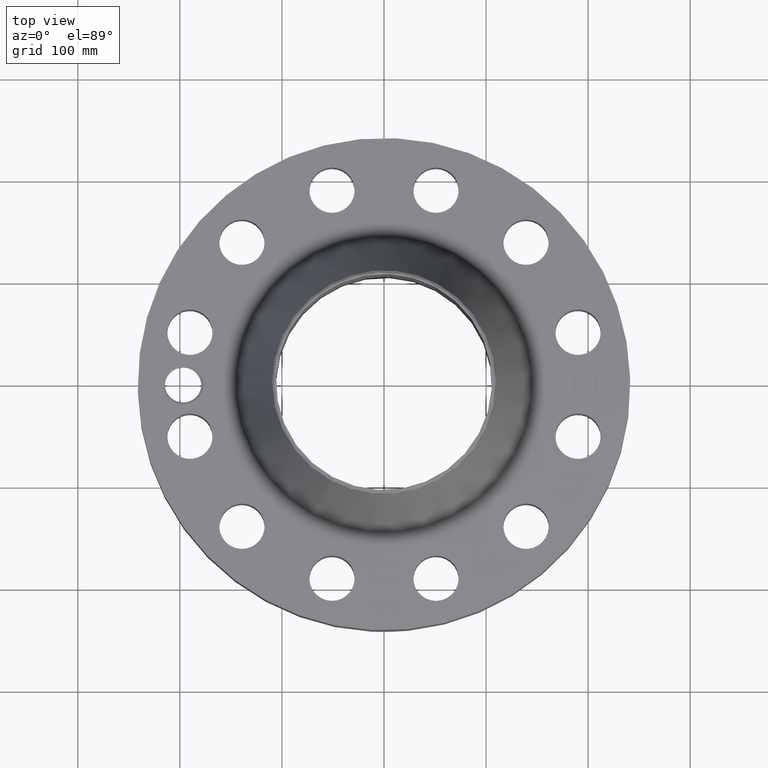
[diagram: clean part render]
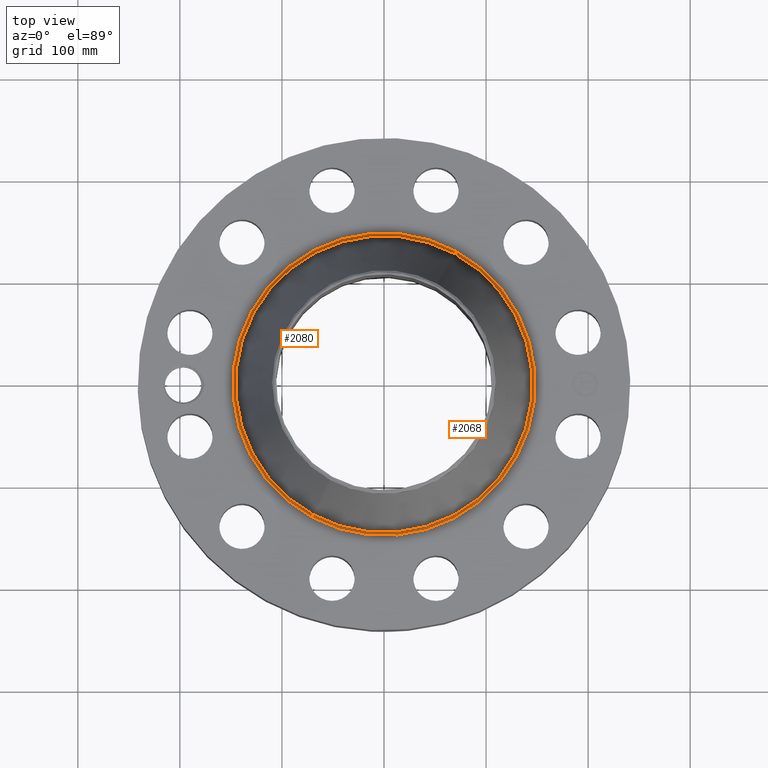
[diagram: same view with one multi-face feature highlighted, each face labeled with its STEP entity id]
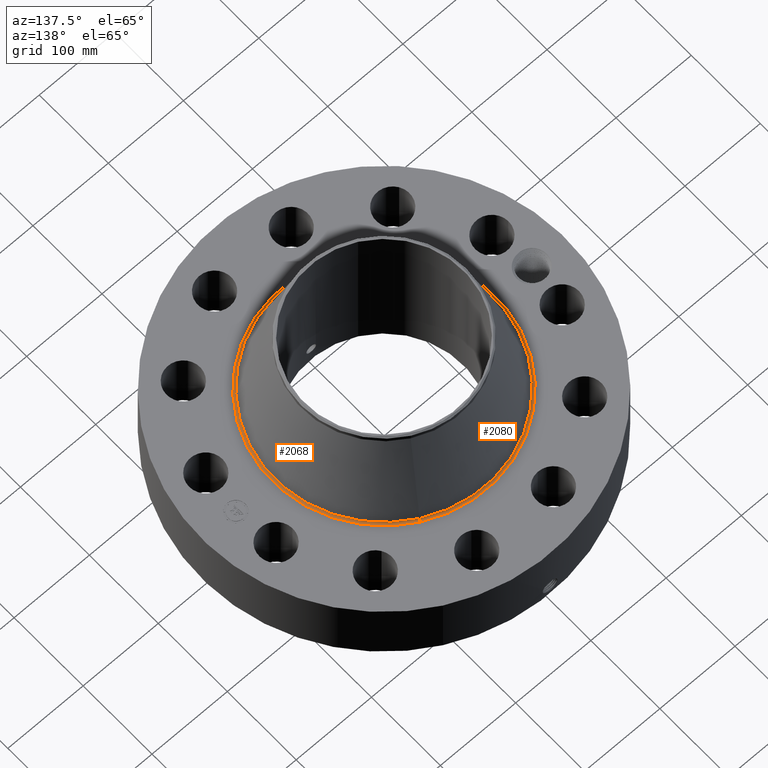
[diagram: same view with one multi-face feature highlighted, each face labeled with its STEP entity id]
A machine part, top view. The highlighted faces form ONE feature: a constant-radius fillet chain: 2 tangent blend faces with common blend radius 3.048 mm. The faces share edges in the B-rep.
A second angle (auxiliary view) of the same feature is appended — it is thin or edge-on in the first view.
Their STEP definitions:
[1] entity #2080 (Torus):
#663=AXIS2_PLACEMENT_3D('Circle Axis2P3D',#661,#662,$) ;
#2041=AXIS2_PLACEMENT_3D('Torus Axis2P3D',#2038,#2039,#2040) ;
#2045=AXIS2_PLACEMENT_3D('Circle Axis2P3D',#2043,#2044,$) ;
#2059=AXIS2_PLACEMENT_3D('Circle Axis2P3D',#2057,#2058,$) ;
#2071=AXIS2_PLACEMENT_3D('Circle Axis2P3D',#2069,#2070,$) ;
#661=CARTESIAN_POINT('Axis2P3D Location',(0.,0.,3.87000000002)) ;
#665=CARTESIAN_POINT('Vertex',(-2.79864696692,-5.12288891036,3.87000000002)) ;
#667=CARTESIAN_POINT('Vertex',(2.79864696692,5.12288891036,3.87000000002)) ;
#2038=CARTESIAN_POINT('Axis2P3D Location',(0.,0.,3.99000000002)) ;
#2043=CARTESIAN_POINT('Axis2P3D Location',(2.79864696692,5.12288891036,3.99000000002)) ;
#2047=CARTESIAN_POINT('Vertex',(2.74387084904,5.02262189913,3.95331071865)) ;
#2054=CARTESIAN_POINT('Vertex',(-2.74387084904,-5.02262189913,3.95331071865)) ;
#2057=CARTESIAN_POINT('Axis2P3D Location',(-2.79864696692,-5.12288891036,3.99000000002)) ;
#2069=CARTESIAN_POINT('Axis2P3D Location',(0.,0.,3.95331071865)) ;
#662=DIRECTION('Axis2P3D Direction',(0.,0.,-0.0393700787402)) ;
#2039=DIRECTION('Axis2P3D Direction',(0.,0.,-0.0393700787402)) ;
#2040=DIRECTION('Axis2P3D XDirection',(-0.0188750212049,-0.0345504945626,0.)) ;
#2044=DIRECTION('Axis2P3D Direction',(-0.0345504945626,0.0188750212049,0.)) ;
#2058=DIRECTION('Axis2P3D Direction',(0.0345504945626,-0.0188750212049,0.)) ;
#2070=DIRECTION('Axis2P3D Direction',(0.,0.,-0.0393700787402)) ;
#2075=ORIENTED_EDGE('',*,*,#669,.F.) ;
#2076=ORIENTED_EDGE('',*,*,#2061,.T.) ;
#2077=ORIENTED_EDGE('',*,*,#2073,.T.) ;
#2078=ORIENTED_EDGE('',*,*,#2049,.F.) ;
#2080=ADVANCED_FACE('PartBody',(#2079),#2042,.F.) ;
#664=CIRCLE('generated circle',#663,5.83750080372) ;
#2046=CIRCLE('generated circle',#2045,0.12) ;
#2060=CIRCLE('generated circle',#2059,0.12) ;
#2072=CIRCLE('generated circle',#2071,5.7232471533) ;
#2042=TOROIDAL_SURFACE('homeo Torus',#2041,5.83750080372,0.12) ;
#669=EDGE_CURVE('',#666,#668,#664,.T.) ;
#2049=EDGE_CURVE('',#668,#2048,#2046,.T.) ;
#2061=EDGE_CURVE('',#666,#2055,#2060,.T.) ;
#2073=EDGE_CURVE('',#2055,#2048,#2072,.T.) ;
#2074=EDGE_LOOP('',(#2075,#2076,#2077,#2078)) ;
#2079=FACE_OUTER_BOUND('',#2074,.T.) ;
#666=VERTEX_POINT('',#665) ;
#668=VERTEX_POINT('',#667) ;
#2048=VERTEX_POINT('',#2047) ;
#2055=VERTEX_POINT('',#2054) ;
[2] entity #2068 (Torus):
#672=AXIS2_PLACEMENT_3D('Circle Axis2P3D',#670,#671,$) ;
#2041=AXIS2_PLACEMENT_3D('Torus Axis2P3D',#2038,#2039,#2040) ;
#2045=AXIS2_PLACEMENT_3D('Circle Axis2P3D',#2043,#2044,$) ;
#2052=AXIS2_PLACEMENT_3D('Circle Axis2P3D',#2050,#2051,$) ;
#2059=AXIS2_PLACEMENT_3D('Circle Axis2P3D',#2057,#2058,$) ;
#665=CARTESIAN_POINT('Vertex',(-2.79864696692,-5.12288891036,3.87000000002)) ;
#667=CARTESIAN_POINT('Vertex',(2.79864696692,5.12288891036,3.87000000002)) ;
#670=CARTESIAN_POINT('Axis2P3D Location',(0.,0.,3.87000000002)) ;
#2038=CARTESIAN_POINT('Axis2P3D Location',(0.,0.,3.99000000002)) ;
#2043=CARTESIAN_POINT('Axis2P3D Location',(2.79864696692,5.12288891036,3.99000000002)) ;
#2047=CARTESIAN_POINT('Vertex',(2.74387084904,5.02262189913,3.95331071865)) ;
#2050=CARTESIAN_POINT('Axis2P3D Location',(0.,0.,3.95331071865)) ;
#2054=CARTESIAN_POINT('Vertex',(-2.74387084904,-5.02262189913,3.95331071865)) ;
#2057=CARTESIAN_POINT('Axis2P3D Location',(-2.79864696692,-5.12288891036,3.99000000002)) ;
#671=DIRECTION('Axis2P3D Direction',(0.,0.,-0.0393700787402)) ;
#2039=DIRECTION('Axis2P3D Direction',(0.,0.,-0.0393700787402)) ;
#2040=DIRECTION('Axis2P3D XDirection',(-0.0188750212049,-0.0345504945626,0.)) ;
#2044=DIRECTION('Axis2P3D Direction',(-0.0345504945626,0.0188750212049,0.)) ;
#2051=DIRECTION('Axis2P3D Direction',(0.,0.,-0.0393700787402)) ;
#2058=DIRECTION('Axis2P3D Direction',(0.0345504945626,-0.0188750212049,0.)) ;
#2063=ORIENTED_EDGE('',*,*,#674,.F.) ;
#2064=ORIENTED_EDGE('',*,*,#2049,.T.) ;
#2065=ORIENTED_EDGE('',*,*,#2056,.T.) ;
#2066=ORIENTED_EDGE('',*,*,#2061,.F.) ;
#2068=ADVANCED_FACE('PartBody',(#2067),#2042,.F.) ;
#673=CIRCLE('generated circle',#672,5.83750080372) ;
#2046=CIRCLE('generated circle',#2045,0.12) ;
#2053=CIRCLE('generated circle',#2052,5.7232471533) ;
#2060=CIRCLE('generated circle',#2059,0.12) ;
#2042=TOROIDAL_SURFACE('homeo Torus',#2041,5.83750080372,0.12) ;
#674=EDGE_CURVE('',#668,#666,#673,.T.) ;
#2049=EDGE_CURVE('',#668,#2048,#2046,.T.) ;
#2056=EDGE_CURVE('',#2048,#2055,#2053,.T.) ;
#2061=EDGE_CURVE('',#666,#2055,#2060,.T.) ;
#2062=EDGE_LOOP('',(#2063,#2064,#2065,#2066)) ;
#2067=FACE_OUTER_BOUND('',#2062,.T.) ;
#666=VERTEX_POINT('',#665) ;
#668=VERTEX_POINT('',#667) ;
#2048=VERTEX_POINT('',#2047) ;
#2055=VERTEX_POINT('',#2054) ;